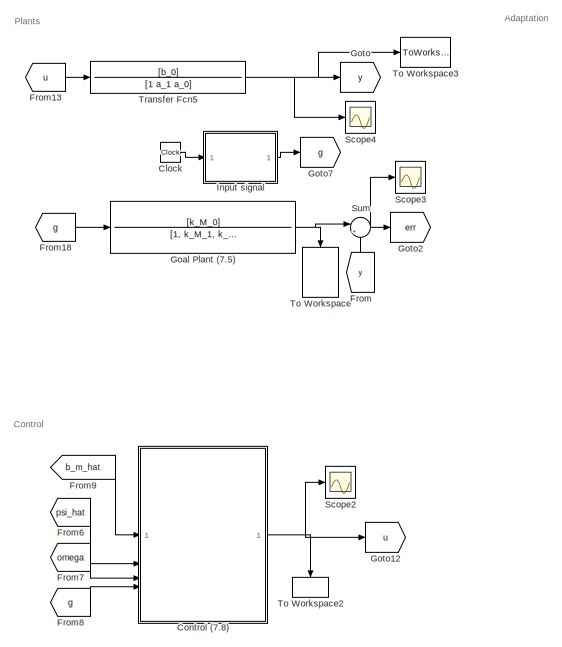
[diagram: root canvas - part 1/2, left side, full height]
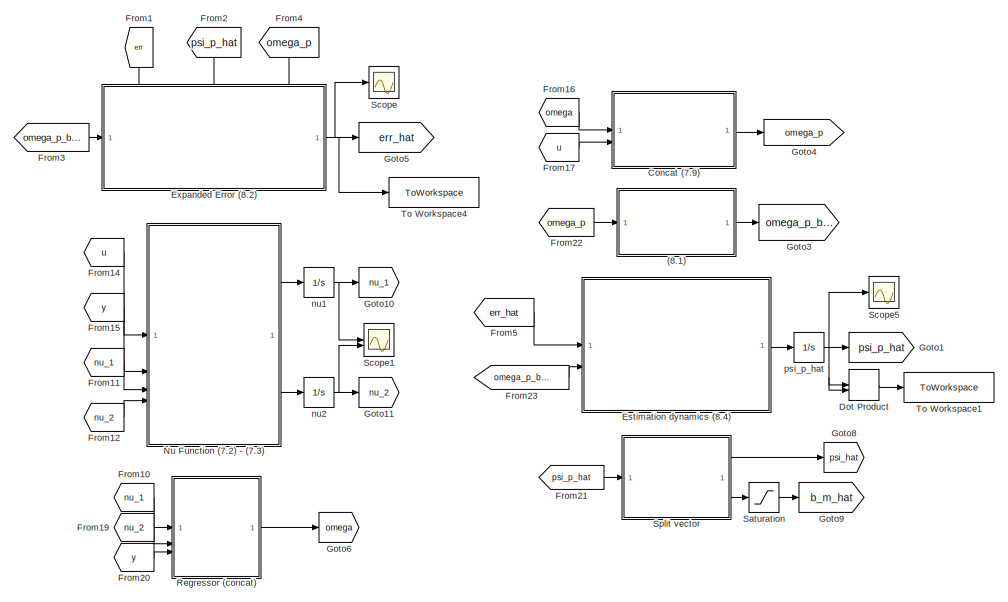
[diagram: root canvas - part 2/2, right side, full height]
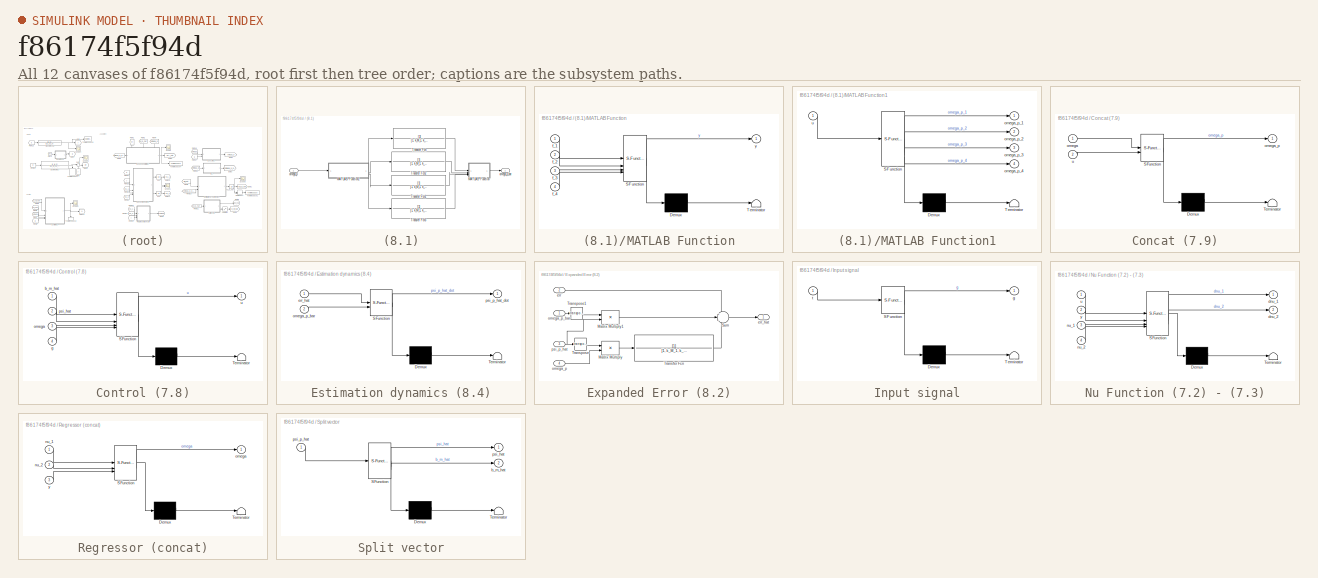
[diagram: thumbnail index - all 12 canvases of the model, root first then tree order]
MODEL slx_f86174f5f94d
KIND model
CONFIG AbsTol = auto
CONFIG EnableMultiTasking = off
CONFIG FixedStep = auto
CONFIG MaxStep = auto
CONFIG MinStep = auto
CONFIG RelTol = 1e-3
CONFIG SampleTimeConstraint = Unconstrained
CONFIG SolverName = VariableStepAuto
CONFIG StartTime = 0.0
CONFIG StopTime = 1000
BLOCK [SubSystem] (8.1)
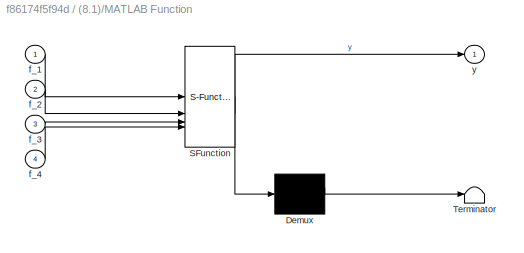
BLOCK [SubSystem] (8.1)/MATLAB Function
  ErrorFcn = Stateflow.Translate.translate
  PermitHierarchicalResolution = ExplicitOnly
  SFBlockType = MATLAB Function
  TreatAsAtomicUnit = on
BLOCK [Demux] (8.1)/MATLAB Function/ Demux 
  Outputs = 1
BLOCK [S-Function] (8.1)/MATLAB Function/ SFunction 
  EnableBusSupport = on
  FunctionName = sf_sfun
  PortCounts = [4 2]
  SFcnIsStateOwnerBlock = off
  SFunctionDeploymentMode = off
  Tag = Stateflow S-Function 4
BLOCK [Terminator] (8.1)/MATLAB Function/ Terminator 
BLOCK [Inport] (8.1)/MATLAB Function/f_1
BLOCK [Inport] (8.1)/MATLAB Function/f_2
  Port = 2
BLOCK [Inport] (8.1)/MATLAB Function/f_3
  Port = 3
BLOCK [Inport] (8.1)/MATLAB Function/f_4
  Port = 4
BLOCK [Outport] (8.1)/MATLAB Function/y
BLOCK [SubSystem] (8.1)/MATLAB Function1
  ErrorFcn = Stateflow.Translate.translate
  PermitHierarchicalResolution = ExplicitOnly
  SFBlockType = MATLAB Function
  TreatAsAtomicUnit = on
BLOCK [Demux] (8.1)/MATLAB Function1/ Demux 
  Outputs = 1
BLOCK [S-Function] (8.1)/MATLAB Function1/ SFunction 
  EnableBusSupport = on
  FunctionName = sf_sfun
  PortCounts = [1 5]
  SFcnIsStateOwnerBlock = off
  SFunctionDeploymentMode = off
  Tag = Stateflow S-Function 5
BLOCK [Terminator] (8.1)/MATLAB Function1/ Terminator 
BLOCK [Outport] (8.1)/MATLAB Function1/omega_p_1
BLOCK [Outport] (8.1)/MATLAB Function1/omega_p_2
  Port = 2
BLOCK [Outport] (8.1)/MATLAB Function1/omega_p_3
  Port = 3
BLOCK [Outport] (8.1)/MATLAB Function1/omega_p_4
  Port = 4
BLOCK [Inport] (8.1)/MATLAB Function1/u
BLOCK [TransferFcn] (8.1)/Transfer Fcn
  Denominator = [1, k_M_1, k_M_0]
BLOCK [TransferFcn] (8.1)/Transfer Fcn1
  Denominator = [1, k_M_1, k_M_0]
BLOCK [TransferFcn] (8.1)/Transfer Fcn2
  Denominator = [1, k_M_1, k_M_0]
BLOCK [TransferFcn] (8.1)/Transfer Fcn3
  Denominator = [1, k_M_1, k_M_0]
BLOCK [Inport] (8.1)/omega_p
BLOCK [Outport] (8.1)/omega_p_bar
BLOCK [Clock] Clock
BLOCK [SubSystem] Concat (7.9)
  ErrorFcn = Stateflow.Translate.translate
  PermitHierarchicalResolution = ExplicitOnly
  SFBlockType = MATLAB Function
  TreatAsAtomicUnit = on
BLOCK [Demux] Concat (7.9)/ Demux 
  Outputs = 1
BLOCK [S-Function] Concat (7.9)/ SFunction 
  EnableBusSupport = on
  FunctionName = sf_sfun
  PortCounts = [2 2]
  SFcnIsStateOwnerBlock = off
  SFunctionDeploymentMode = off
  Tag = Stateflow S-Function 6
BLOCK [Terminator] Concat (7.9)/ Terminator 
BLOCK [Inport] Concat (7.9)/omega
BLOCK [Outport] Concat (7.9)/omega_p
BLOCK [Inport] Concat (7.9)/u
  Port = 2
BLOCK [SubSystem] Control (7.8)
  ErrorFcn = Stateflow.Translate.translate
  PermitHierarchicalResolution = ExplicitOnly
  SFBlockType = MATLAB Function
  TreatAsAtomicUnit = on
BLOCK [Demux] Control (7.8)/ Demux 
  Outputs = 1
BLOCK [S-Function] Control (7.8)/ SFunction 
  EnableBusSupport = on
  FunctionName = sf_sfun
  Parameters = k_M_0
  PortCounts = [4 2]
  SFcnIsStateOwnerBlock = off
  SFunctionDeploymentMode = off
  Tag = Stateflow S-Function 1
BLOCK [Terminator] Control (7.8)/ Terminator 
BLOCK [Inport] Control (7.8)/b_m_hat
BLOCK [Inport] Control (7.8)/g
  Port = 4
BLOCK [Inport] Control (7.8)/omega
  Port = 3
BLOCK [Inport] Control (7.8)/psi_hat
  Port = 2
BLOCK [Outport] Control (7.8)/u
BLOCK [DotProduct] Dot Product
  OutDataTypeStr = Inherit: Inherit via internal rule
BLOCK [SubSystem] Estimation dynamics (8.4)
  ErrorFcn = Stateflow.Translate.translate
  PermitHierarchicalResolution = ExplicitOnly
  SFBlockType = MATLAB Function
  TreatAsAtomicUnit = on
BLOCK [Demux] Estimation dynamics (8.4)/ Demux 
  Outputs = 1
BLOCK [S-Function] Estimation dynamics (8.4)/ SFunction 
  EnableBusSupport = on
  FunctionName = sf_sfun
  Parameters = gamma
  PortCounts = [2 2]
  SFcnIsStateOwnerBlock = off
  SFunctionDeploymentMode = off
  Tag = Stateflow S-Function 7
BLOCK [Terminator] Estimation dynamics (8.4)/ Terminator 
BLOCK [Inport] Estimation dynamics (8.4)/err_hat
BLOCK [Inport] Estimation dynamics (8.4)/omega_p_bar
  Port = 2
BLOCK [Outport] Estimation dynamics (8.4)/psi_p_hat_dot
BLOCK [SubSystem] Expanded Error (8.2)
  PortSchema = {"entries":[{"content":{"sides":[{"content":{"connectorIds":["In1"]},"type":"ConnectorPlacement.EquallySpacedRectSide","uuid":"8352c707-0f0f-4965-ab9a-a54854278a50"},{"content":{"connectorIds":["Out1"],"side":"RIGHT"},"type":"ConnectorPlacement.EquallySpacedRectSide","uuid":"2870c956-d2c8-4da6-8e00-d09a3c8192c5"},{"content":{"connectorIds":["In2","In3","In4"],"side":"TOP"},"type":"ConnectorPlaceme...<+257ch>
BLOCK [Product] Expanded Error (8.2)/Matrix Multiply
  Multiplication = Matrix(*)
BLOCK [Product] Expanded Error (8.2)/Matrix Multiply1
  Multiplication = Matrix(*)
BLOCK [Sum] Expanded Error (8.2)/Sum
  Inputs = +|-|+
BLOCK [TransferFcn] Expanded Error (8.2)/Transfer Fcn
  Denominator = [1, k_M_1, k_M_0]
BLOCK [Math] Expanded Error (8.2)/Transpose
  Operator = transpose
BLOCK [Math] Expanded Error (8.2)/Transpose1
  Operator = transpose
BLOCK [Inport] Expanded Error (8.2)/err
  Port = 2
BLOCK [Outport] Expanded Error (8.2)/err_hat
BLOCK [Inport] Expanded Error (8.2)/omega_p
  Port = 4
BLOCK [Inport] Expanded Error (8.2)/omega_p_bar
BLOCK [Inport] Expanded Error (8.2)/psi_p_hat
  Port = 3
BLOCK [From] From
  GotoTag = y
  NameLocation = right
BLOCK [From] From1
  GotoTag = err
  NameLocation = left
BLOCK [From] From10
  GotoTag = nu_1
BLOCK [From] From11
  GotoTag = nu_1
BLOCK [From] From12
  GotoTag = nu_2
BLOCK [From] From13
  GotoTag = u
BLOCK [From] From14
  GotoTag = u
BLOCK [From] From15
  GotoTag = y
BLOCK [From] From16
  GotoTag = omega
BLOCK [From] From17
  GotoTag = u
BLOCK [From] From18
  GotoTag = g
BLOCK [From] From19
  GotoTag = nu_2
BLOCK [From] From2
  GotoTag = psi_p_hat
  NameLocation = left
BLOCK [From] From20
  GotoTag = y
BLOCK [From] From21
  GotoTag = psi_p_hat
BLOCK [From] From22
  GotoTag = omega_p
BLOCK [From] From23
  GotoTag = omega_p_bar
BLOCK [From] From3
  GotoTag = omega_p_bar
BLOCK [From] From4
  GotoTag = omega_p
  NameLocation = left
BLOCK [From] From5
  GotoTag = err_hat
BLOCK [From] From6
  GotoTag = psi_hat
BLOCK [From] From7
  GotoTag = omega
BLOCK [From] From8
  GotoTag = g
BLOCK [From] From9
  GotoTag = b_m_hat
BLOCK [TransferFcn] Goal Plant (7.5)
  Denominator = [1, k_M_1, k_M_0]
  Numerator = [k_M_0]
BLOCK [Goto] Goto
  GotoTag = y
BLOCK [Goto] Goto1
  GotoTag = psi_p_hat
BLOCK [Goto] Goto10
  GotoTag = nu_1
BLOCK [Goto] Goto11
  GotoTag = nu_2
BLOCK [Goto] Goto12
  GotoTag = u
BLOCK [Goto] Goto2
  GotoTag = err
BLOCK [Goto] Goto3
  GotoTag = omega_p_bar
BLOCK [Goto] Goto4
  GotoTag = omega_p
BLOCK [Goto] Goto5
  GotoTag = err_hat
BLOCK [Goto] Goto6
  GotoTag = omega
BLOCK [Goto] Goto7
  GotoTag = g
BLOCK [Goto] Goto8
  GotoTag = psi_hat
BLOCK [Goto] Goto9
  GotoTag = b_m_hat
BLOCK [SubSystem] Input signal
  ErrorFcn = Stateflow.Translate.translate
  PermitHierarchicalResolution = ExplicitOnly
  SFBlockType = MATLAB Function
  TreatAsAtomicUnit = on
BLOCK [Demux] Input signal/ Demux 
  Outputs = 1
BLOCK [S-Function] Input signal/ SFunction 
  EnableBusSupport = on
  FunctionName = sf_sfun
  PortCounts = [1 2]
  SFcnIsStateOwnerBlock = off
  SFunctionDeploymentMode = off
  Tag = Stateflow S-Function 8
BLOCK [Terminator] Input signal/ Terminator 
BLOCK [Outport] Input signal/g
BLOCK [Inport] Input signal/t
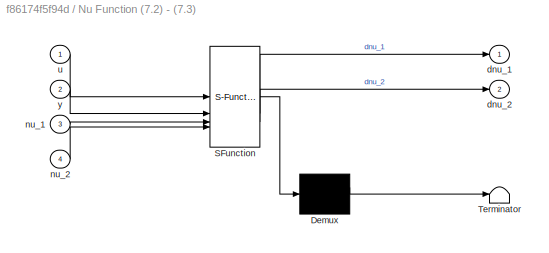
BLOCK [SubSystem] Nu Function (7.2) - (7.3)
  ErrorFcn = Stateflow.Translate.translate
  PermitHierarchicalResolution = ExplicitOnly
  SFBlockType = MATLAB Function
  TreatAsAtomicUnit = on
BLOCK [Demux] Nu Function (7.2) - (7.3)/ Demux 
  Outputs = 1
BLOCK [S-Function] Nu Function (7.2) - (7.3)/ SFunction 
  EnableBusSupport = on
  FunctionName = sf_sfun
  Parameters = Lambda
  PortCounts = [4 3]
  SFcnIsStateOwnerBlock = off
  SFunctionDeploymentMode = off
  Tag = Stateflow S-Function 2
BLOCK [Terminator] Nu Function (7.2) - (7.3)/ Terminator 
BLOCK [Outport] Nu Function (7.2) - (7.3)/dnu_1
BLOCK [Outport] Nu Function (7.2) - (7.3)/dnu_2
  Port = 2
BLOCK [Inport] Nu Function (7.2) - (7.3)/nu_1
  Port = 3
BLOCK [Inport] Nu Function (7.2) - (7.3)/nu_2
  Port = 4
BLOCK [Inport] Nu Function (7.2) - (7.3)/u
BLOCK [Inport] Nu Function (7.2) - (7.3)/y
  Port = 2
BLOCK [SubSystem] Regressor (concat)
  ErrorFcn = Stateflow.Translate.translate
  PermitHierarchicalResolution = ExplicitOnly
  SFBlockType = MATLAB Function
  TreatAsAtomicUnit = on
BLOCK [Demux] Regressor (concat)/ Demux 
  Outputs = 1
BLOCK [S-Function] Regressor (concat)/ SFunction 
  EnableBusSupport = on
  FunctionName = sf_sfun
  PortCounts = [3 2]
  SFcnIsStateOwnerBlock = off
  SFunctionDeploymentMode = off
  Tag = Stateflow S-Function 3
BLOCK [Terminator] Regressor (concat)/ Terminator 
BLOCK [Inport] Regressor (concat)/nu_1
BLOCK [Inport] Regressor (concat)/nu_2
  Port = 2
BLOCK [Outport] Regressor (concat)/omega
BLOCK [Inport] Regressor (concat)/y
  Port = 3
BLOCK [Saturate] Saturation
  LowerLimit = 0.1
  UpperLimit = 10000000
BLOCK [Scope] Scope
  Floating = off
  NumInputPorts = 1
  ScopeSpecificationString = Simulink.scopes.TimeScopeBlockCfg('CurrentConfiguration', extmgr.ConfigurationSet(extmgr.Configuration('Core','General UI',true),extmgr.Configuration('Core','Source UI',true),extmgr.Configuration('Sources','WiredSimulink',true),extmgr.Configuration('Visuals','Time Domain',true,'SerializedDisplays',{struct('MinYLimReal','-0.38556','MaxYLimReal','0.1367','YLabelReal','','MinYLimMag','0.00000','MaxYL...<+1338ch>
BLOCK [Scope] Scope1
  Floating = off
  NumInputPorts = 2
  ScopeSpecificationString = Simulink.scopes.TimeScopeBlockCfg('CurrentConfiguration', extmgr.ConfigurationSet(extmgr.Configuration('Core','General UI',true),extmgr.Configuration('Core','Source UI',true),extmgr.Configuration('Sources','WiredSimulink',true,'DataLoggingVariableName','ScopeData1'),extmgr.Configuration('Visuals','Time Domain',true,'SerializedDisplays',{struct('MinYLimReal','-2.91226','MaxYLimReal','5.22205','YLab...<+1626ch>
BLOCK [Scope] Scope2
  Floating = off
  NumInputPorts = 1
  ScopeSpecificationString = Simulink.scopes.TimeScopeBlockCfg('CurrentConfiguration', extmgr.ConfigurationSet(extmgr.Configuration('Core','General UI',true),extmgr.Configuration('Core','Source UI',true),extmgr.Configuration('Sources','WiredSimulink',true,'DataLoggingVariableName','ScopeData2'),extmgr.Configuration('Visuals','Time Domain',true,'SerializedDisplays',{struct('MinYLimReal','-22.17409','MaxYLimReal','8.17368','YLa...<+1405ch>
BLOCK [Scope] Scope3
  Floating = off
  NumInputPorts = 1
  ScopeSpecificationString = Simulink.scopes.TimeScopeBlockCfg('CurrentConfiguration', extmgr.ConfigurationSet(extmgr.Configuration('Core','General UI',true),extmgr.Configuration('Core','Source UI',true),extmgr.Configuration('Sources','WiredSimulink',true,'DataLoggingVariableName','ScopeData3'),extmgr.Configuration('Visuals','Time Domain',true,'SerializedDisplays',{struct('MinYLimReal','-5.19588','MaxYLimReal','0.97347','YLab...<+1410ch>
BLOCK [Scope] Scope4
  Floating = off
  NumInputPorts = 1
  ScopeSpecificationString = Simulink.scopes.TimeScopeBlockCfg('CurrentConfiguration', extmgr.ConfigurationSet(extmgr.Configuration('Core','General UI',true),extmgr.Configuration('Core','Source UI',true),extmgr.Configuration('Sources','WiredSimulink',true,'DataLoggingVariableName','ScopeData4'),extmgr.Configuration('Visuals','Time Domain',true,'SerializedDisplays',{struct('MinYLimReal','0.36955','MaxYLimReal','3.21011','YLabe...<+1397ch>
BLOCK [Scope] Scope5
  Floating = off
  NumInputPorts = 1
  ScopeSpecificationString = Simulink.scopes.TimeScopeBlockCfg('CurrentConfiguration', extmgr.ConfigurationSet(extmgr.Configuration('Core','General UI',true),extmgr.Configuration('Core','Source UI',true),extmgr.Configuration('Sources','WiredSimulink',true,'DataLoggingVariableName','ScopeData5'),extmgr.Configuration('Visuals','Time Domain',true,'SerializedDisplays',{struct('MinYLimReal','-0.88779','MaxYLimReal','11.84566','YLa...<+1560ch>
BLOCK [SubSystem] Split vector
  ErrorFcn = Stateflow.Translate.translate
  PermitHierarchicalResolution = ExplicitOnly
  SFBlockType = MATLAB Function
  TreatAsAtomicUnit = on
BLOCK [Demux] Split vector/ Demux 
  Outputs = 1
BLOCK [S-Function] Split vector/ SFunction 
  EnableBusSupport = on
  FunctionName = sf_sfun
  PortCounts = [1 3]
  SFcnIsStateOwnerBlock = off
  SFunctionDeploymentMode = off
  Tag = Stateflow S-Function 9
BLOCK [Terminator] Split vector/ Terminator 
BLOCK [Outport] Split vector/b_m_hat
  Port = 2
BLOCK [Outport] Split vector/psi_hat
BLOCK [Inport] Split vector/psi_p_hat
BLOCK [Sum] Sum
  Inputs = |+-
BLOCK [ToWorkspace] To Workspace
  FixptAsFi = on
  MaxDataPoints = inf
  NameLocation = left
  SampleTime = -1
  SaveFormat = Timeseries
  VariableName = y_m
BLOCK [ToWorkspace] To Workspace1
  FixptAsFi = on
  MaxDataPoints = inf
  SampleTime = -1
  SaveFormat = Timeseries
  VariableName = psi_p_norm
BLOCK [ToWorkspace] To Workspace2
  FixptAsFi = on
  MaxDataPoints = inf
  NameLocation = left
  SampleTime = -1
  SaveFormat = Timeseries
  VariableName = u
BLOCK [ToWorkspace] To Workspace3
  FixptAsFi = on
  MaxDataPoints = inf
  SampleTime = -1
  SaveFormat = Timeseries
  VariableName = y
BLOCK [ToWorkspace] To Workspace4
  FixptAsFi = on
  MaxDataPoints = inf
  SampleTime = -1
  SaveFormat = Timeseries
  VariableName = err_hat
BLOCK [TransferFcn] Transfer Fcn5
  Denominator = [1 a_1 a_0]
  Numerator = [b_0]
BLOCK [Integrator] nu1
BLOCK [Integrator] nu2
BLOCK [Integrator] psi_p_hat
  InitialCondition = [10;10;10;10]
ANNOTATION (root): Adaptation
ANNOTATION (root): Control
ANNOTATION (root): Plants
LINE (8.1)/MATLAB Function1:1 -> (8.1)/Transfer Fcn:1
LINE (8.1)/MATLAB Function1:2 -> (8.1)/Transfer Fcn2:1
LINE (8.1)/MATLAB Function1:3 -> (8.1)/Transfer Fcn1:1
LINE (8.1)/MATLAB Function1:4 -> (8.1)/Transfer Fcn3:1
LINE (8.1)/MATLAB Function:1 -> (8.1)/omega_p_bar:1
LINE (8.1)/Transfer Fcn1:1 -> (8.1)/MATLAB Function:3
LINE (8.1)/Transfer Fcn2:1 -> (8.1)/MATLAB Function:2
LINE (8.1)/Transfer Fcn3:1 -> (8.1)/MATLAB Function:4
LINE (8.1)/Transfer Fcn:1 -> (8.1)/MATLAB Function:1
LINE (8.1)/omega_p:1 -> (8.1)/MATLAB Function1:1
LINE (8.1):1 -> Goto3:1
LINE Clock:1 -> Input signal:1
LINE Concat (7.9):1 -> Goto4:1
NET Control (7.8):1 -> Goto12:1, Scope2:1, To Workspace2:1
LINE Dot Product:1 -> To Workspace1:1
LINE Estimation dynamics (8.4):1 -> psi_p_hat:1
LINE Expanded Error (8.2)/Matrix Multiply1:1 -> Expanded Error (8.2)/Sum:2
LINE Expanded Error (8.2)/Matrix Multiply:1 -> Expanded Error (8.2)/Transfer Fcn:1
LINE Expanded Error (8.2)/Sum:1 -> Expanded Error (8.2)/err_hat:1
LINE Expanded Error (8.2)/Transfer Fcn:1 -> Expanded Error (8.2)/Sum:3
LINE Expanded Error (8.2)/Transpose1:1 -> Expanded Error (8.2)/Matrix Multiply1:1
LINE Expanded Error (8.2)/Transpose:1 -> Expanded Error (8.2)/Matrix Multiply:1
LINE Expanded Error (8.2)/err:1 -> Expanded Error (8.2)/Sum:1
LINE Expanded Error (8.2)/omega_p:1 -> Expanded Error (8.2)/Matrix Multiply:2
LINE Expanded Error (8.2)/omega_p_bar:1 -> Expanded Error (8.2)/Transpose1:1
NET Expanded Error (8.2)/psi_p_hat:1 -> Expanded Error (8.2)/Matrix Multiply1:2, Expanded Error (8.2)/Transpose:1
NET Expanded Error (8.2):1 -> Goto5:1, Scope:1, To Workspace4:1
LINE From10:1 -> Regressor (concat):1
LINE From11:1 -> Nu Function (7.2) - (7.3):3
LINE From12:1 -> Nu Function (7.2) - (7.3):4
LINE From13:1 -> Transfer Fcn5:1
LINE From14:1 -> Nu Function (7.2) - (7.3):1
LINE From15:1 -> Nu Function (7.2) - (7.3):2
LINE From16:1 -> Concat (7.9):1
LINE From17:1 -> Concat (7.9):2
LINE From18:1 -> Goal Plant (7.5):1
LINE From19:1 -> Regressor (concat):2
LINE From1:1 -> Expanded Error (8.2):2
LINE From20:1 -> Regressor (concat):3
LINE From21:1 -> Split vector:1
LINE From22:1 -> (8.1):1
LINE From23:1 -> Estimation dynamics (8.4):2
LINE From2:1 -> Expanded Error (8.2):3
LINE From3:1 -> Expanded Error (8.2):1
LINE From4:1 -> Expanded Error (8.2):4
LINE From5:1 -> Estimation dynamics (8.4):1
LINE From6:1 -> Control (7.8):2
LINE From7:1 -> Control (7.8):3
LINE From8:1 -> Control (7.8):4
LINE From9:1 -> Control (7.8):1
LINE From:1 -> Sum:2
NET Goal Plant (7.5):1 -> Sum:1, To Workspace:1
LINE Input signal:1 -> Goto7:1
LINE Nu Function (7.2) - (7.3):1 -> nu1:1
LINE Nu Function (7.2) - (7.3):2 -> nu2:1
LINE Regressor (concat):1 -> Goto6:1
LINE Saturation:1 -> Goto9:1
LINE Split vector:1 -> Goto8:1
LINE Split vector:2 -> Saturation:1
NET Sum:1 -> Goto2:1, Scope3:1
NET Transfer Fcn5:1 -> Goto:1, Scope4:1, To Workspace3:1
NET nu1:1 -> Goto10:1, Scope1:1
NET nu2:1 -> Goto11:1, Scope1:2
NET psi_p_hat:1 -> Dot Product:1, Dot Product:2, Goto1:1, Scope5:1
note: NET lines group one-source signal fan-out (src -> all destinations, sorted); 1:1 wires keep LINE
CHART Control (7.8) states=1 transitions=1
  STATE_LABEL 'eML_blk_kernel()'
  STATE_LABEL "SCRIPT:\nfunction u = fcn(b_m_hat, psi_hat, omega, g, k_M_0)\n\nu = (-psi_hat' * omega + k_M_0 * g) / b_m_hat;\n"
CHART Nu Function (7.2) - (7.3) states=1 transitions=1
  STATE_LABEL 'eML_blk_kernel()'
  STATE_LABEL 'SCRIPT:\nfunction [dnu_1, dnu_2] = fcn(u, y, nu_1, nu_2, Lambda)\n\ndnu_1 = Lambda*nu_1 + u;\ndnu_2 = Lambda*nu_2 + y;'
CHART Regressor (concat) states=1 transitions=1
  STATE_LABEL 'eML_blk_kernel()'
  STATE_LABEL 'SCRIPT:\nfunction omega = fcn(nu_1, nu_2, y)\n\nomega = [nu_1; nu_2; y];\n'
CHART (8.1)/MATLAB Function states=1 transitions=1
  STATE_LABEL 'eML_blk_kernel()'
  STATE_LABEL 'SCRIPT:\nfunction y = fcn(f_1, f_2, f_3, f_4)\n\ny = [f_1; f_2; f_3; f_4];\n'
CHART (8.1)/MATLAB Function1 states=1 transitions=1
  STATE_LABEL 'eML_blk_kernel()'
  STATE_LABEL 'SCRIPT:\nfunction [omega_p_1, omega_p_2, omega_p_3, omega_p_4] = fcn(u)\n\nomega_p_1 = u(1);\nomega_p_2 = u(2);\nomega_p_3 = u(3);\nomega_p_4 = u(4);'
CHART Concat (7.9) states=1 transitions=1
  STATE_LABEL 'eML_blk_kernel()'
  STATE_LABEL 'SCRIPT:\nfunction omega_p = fcn(omega, u)\n\nomega_p = [-omega(1); -omega(2); -omega(3); -u];\n'
CHART Estimation dynamics (8.4) states=1 transitions=1
  STATE_LABEL 'eML_blk_kernel()'
  STATE_LABEL "SCRIPT:\nfunction psi_p_hat_dot = fcn(err_hat, omega_p_bar, gamma)\n\npsi_p_hat_dot = gamma*omega_p_bar * err_hat / (1 + omega_p_bar' * omega_p_bar); % Assuming Г = id\n"
CHART Input signal states=1 transitions=1
  STATE_LABEL 'eML_blk_kernel()'
  STATE_LABEL 'SCRIPT:\nfunction g = fcn(t)\n\ng = 7 * cos(3 * t + 2) + 8 ;\n\n'
CHART Split vector states=1 transitions=1
  STATE_LABEL 'eML_blk_kernel()'
  STATE_LABEL 'SCRIPT:\nfunction [psi_hat, b_m_hat] = fcn(psi_p_hat)\n\nb_m_hat = psi_p_hat(4,1);\npsi_hat = psi_p_hat(1:3,1);\n'
CHART  states=0 transitions=0
CHART  states=0 transitions=0
CHART  states=0 transitions=0
CHART  states=0 transitions=0
CHART  states=0 transitions=0
CHART  states=0 transitions=0
CHART  states=0 transitions=0
CHART  states=0 transitions=0
CHART  states=0 transitions=0
